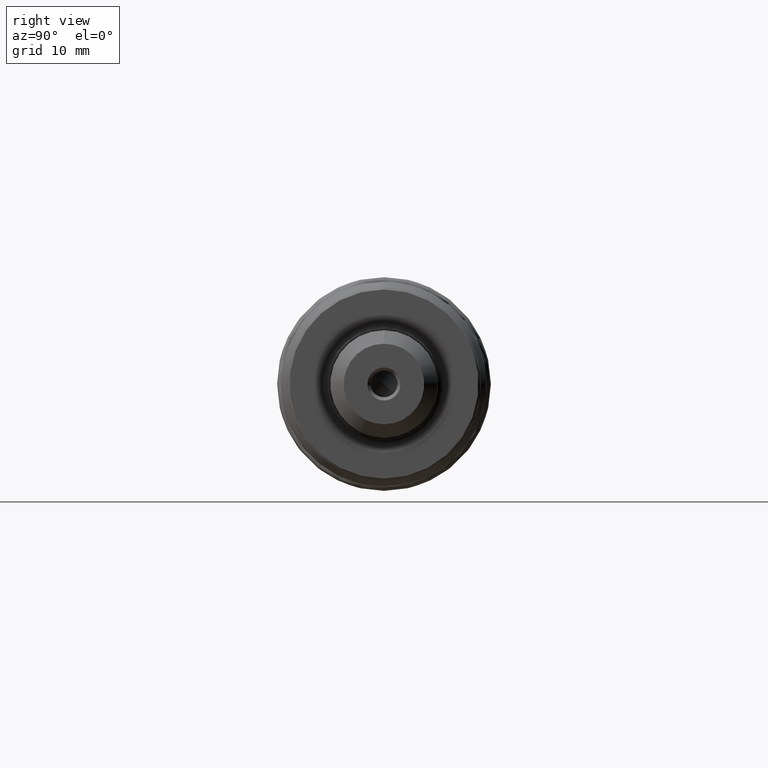
[diagram: clean part render]
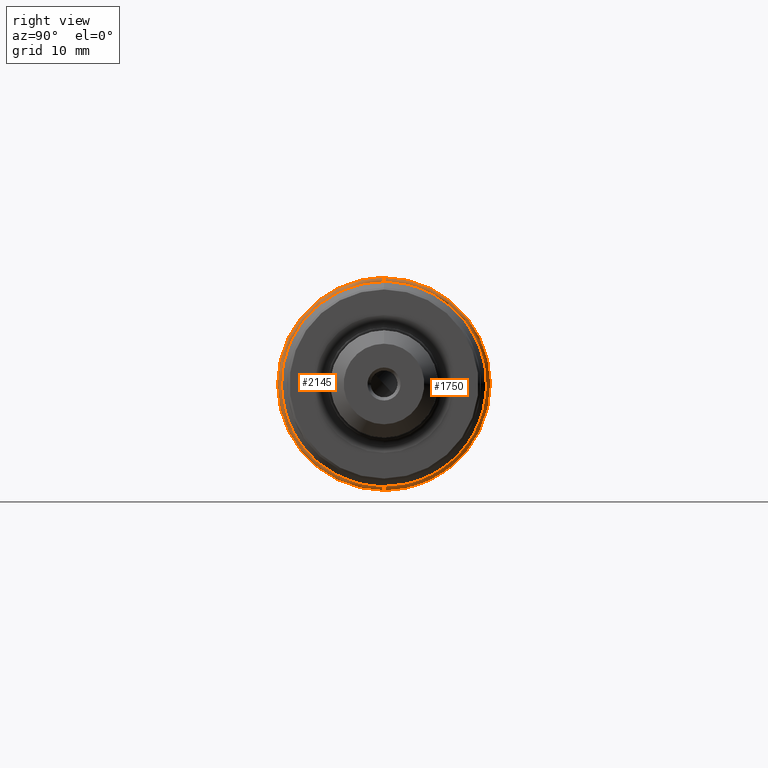
[diagram: same view with one multi-face feature highlighted, each face labeled with its STEP entity id]
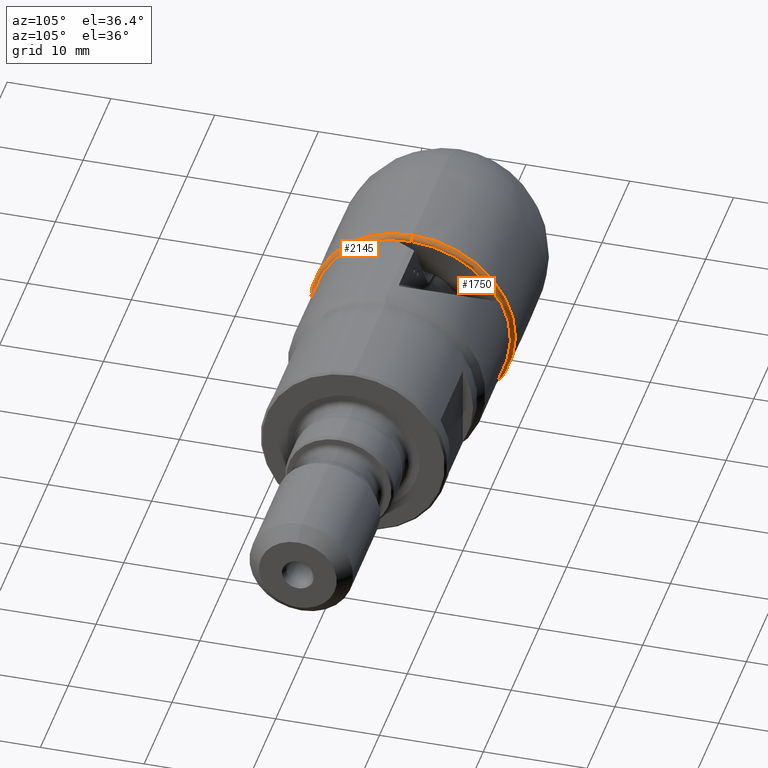
[diagram: same view with one multi-face feature highlighted, each face labeled with its STEP entity id]
A machine part, right view. The highlighted faces form ONE feature: a constant-radius fillet chain: 2 tangent blend faces with common blend radius 0.4183 mm. The faces share edges in the B-rep.
A second angle (auxiliary view) of the same feature is appended — it is thin or edge-on in the first view.
Their STEP definitions:
[1] entity #1750 (Torus):
#18 = CARTESIAN_POINT ( 'NONE',  ( 20.73167743308007616, 0.0000000000000000000, 0.0000000000000000000 ) ) ;
#36 = ORIENTED_EDGE ( 'NONE', *, *, #3346, .T. ) ;
#88 = B_SPLINE_CURVE_WITH_KNOTS ( 'NONE', 3,
 ( #1525, #502, #2565, #1925 ),
 .UNSPECIFIED., .F., .F.,
 ( 4, 4 ),
 ( 0.0005746242800080567049, 0.0007165963232247220607 ),
 .UNSPECIFIED. ) ;
#113 = CARTESIAN_POINT ( 'NONE',  ( 21.12701920496227714, 3.402478379999999802, -8.861709700103181930 ) ) ;
#212 = DIRECTION ( 'NONE',  ( 0.0000000000000000000, 0.0000000000000000000, 1.000000000000000000 ) ) ;
#342 = DIRECTION ( 'NONE',  ( 0.0000000000000000000, 0.0000000000000000000, 1.000000000000000000 ) ) ;
#395 = ORIENTED_EDGE ( 'NONE', *, *, #1327, .T. ) ;
#403 = DIRECTION ( 'NONE',  ( -1.000000000000000000, -0.0000000000000000000, -0.0000000000000000000 ) ) ;
#406 = CARTESIAN_POINT ( 'NONE',  ( 21.12163689232756170, 0.0000000000000000000, 0.0000000000000000000 ) ) ;
#427 = AXIS2_PLACEMENT_3D ( 'NONE', #406, #4414, #2938 ) ;
#430 = AXIS2_PLACEMENT_3D ( 'NONE', #18, #3387, #212 ) ;
#502 = CARTESIAN_POINT ( 'NONE',  ( 21.12669742695476671, 8.596027532152817230, 4.032982321401216375 ) ) ;
#505 = CIRCLE ( 'NONE', #4391, 0.4183131108172009061 ) ;
#653 = DIRECTION ( 'NONE',  ( -1.000000000000000000, -0.0000000000000000000, -0.0000000000000000000 ) ) ;
#727 = CARTESIAN_POINT ( 'NONE',  ( 21.11725314103922457, 0.0000000000000000000, 9.406049446992103213 ) ) ;
#815 = DIRECTION ( 'NONE',  ( 0.0000000000000000000, 0.0000000000000000000, 1.000000000000000000 ) ) ;
#883 = AXIS2_PLACEMENT_3D ( 'NONE', #4208, #3531, #2773 ) ;
#887 = AXIS2_PLACEMENT_3D ( 'NONE', #2936, #403, #815 ) ;
#1032 = CIRCLE ( 'NONE', #887, 9.406049446992103213 ) ;
#1049 = CARTESIAN_POINT ( 'NONE',  ( 20.70646059655977567, 0.0000000000000000000, 0.0000000000000000000 ) ) ;
#1145 = CARTESIAN_POINT ( 'NONE',  ( 21.12163689232757946, 3.402478379999999802, -8.908491367025940022 ) ) ;
#1176 = DIRECTION ( 'NONE',  ( -0.0000000000000000000, 1.000000000000000000, 1.224646799147353207E-16 ) ) ;
#1207 = CARTESIAN_POINT ( 'NONE',  ( 20.73167743308007616, 0.0000000000000000000, 9.902565997730681246 ) ) ;
#1208 = CARTESIAN_POINT ( 'NONE',  ( 20.73167743308007616, 1.212714575246629377E-15, -9.902565997730681246 ) ) ;
#1279 = ORIENTED_EDGE ( 'NONE', *, *, #2064, .F. ) ;
#1327 = EDGE_CURVE ( 'NONE', #1799, #2211, #1466, .T. ) ;
#1426 = EDGE_LOOP ( 'NONE', ( #395, #36, #1777, #4594, #2864, #1279, #4384, #2734 ) ) ;
#1466 = CIRCLE ( 'NONE', #1917, 9.406049446992103213 ) ;
#1525 = CARTESIAN_POINT ( 'NONE',  ( 21.12163689232756170, 8.643153303206718263, 4.029141166553039888 ) ) ;
#1543 = CARTESIAN_POINT ( 'NONE',  ( 21.11725314103922457, 3.402478379999999802, -8.769088155155758457 ) ) ;
#1582 = VERTEX_POINT ( 'NONE', #1208 ) ;
#1750 = ADVANCED_FACE ( 'NONE', ( #2777 ), #3121, .T. ) ;
#1777 = ORIENTED_EDGE ( 'NONE', *, *, #4433, .F. ) ;
#1799 = VERTEX_POINT ( 'NONE', #3590 ) ;
#1917 = AXIS2_PLACEMENT_3D ( 'NONE', #2782, #653, #4166 ) ;
#1925 = CARTESIAN_POINT ( 'NONE',  ( 21.11725314103922457, 8.500975832541801225, 4.025813718219046322 ) ) ;
#2064 = EDGE_CURVE ( 'NONE', #3695, #3224, #88, .T. ) ;
#2075 = CIRCLE ( 'NONE', #883, 0.4183131108172009061 ) ;
#2097 = EDGE_CURVE ( 'NONE', #2115, #3695, #4482, .T. ) ;
#2115 = VERTEX_POINT ( 'NONE', #2914 ) ;
#2134 = B_SPLINE_CURVE_WITH_KNOTS ( 'NONE', 3,
 ( #1543, #2563, #113, #1145 ),
 .UNSPECIFIED., .F., .F.,
 ( 4, 4 ),
 ( 0.0005686338921248355145, 0.0007080817431528470393 ),
 .UNSPECIFIED. ) ;
#2173 = CARTESIAN_POINT ( 'NONE',  ( 21.12163689232756170, 8.643153303206718263, 4.029141166553039888 ) ) ;
#2211 = VERTEX_POINT ( 'NONE', #2334 ) ;
#2239 = AXIS2_PLACEMENT_3D ( 'NONE', #1049, #2553, #342 ) ;
#2334 = CARTESIAN_POINT ( 'NONE',  ( 21.11725314103922457, 1.182311705017345243E-15, -9.406049446992103213 ) ) ;
#2367 = EDGE_CURVE ( 'NONE', #4369, #3224, #1032, .T. ) ;
#2400 = EDGE_CURVE ( 'NONE', #1799, #2115, #2134, .T. ) ;
#2553 = DIRECTION ( 'NONE',  ( -1.000000000000000000, -0.0000000000000000000, -0.0000000000000000000 ) ) ;
#2563 = CARTESIAN_POINT ( 'NONE',  ( 21.12552449895917661, 3.402478379999999802, -8.815243497495545810 ) ) ;
#2565 = CARTESIAN_POINT ( 'NONE',  ( 21.12587616580928440, 8.547511479003194523, 4.032358950262992181 ) ) ;
#2598 = DIRECTION ( 'NONE',  ( 0.0000000000000000000, -1.224646799147357151E-16, 1.000000000000000000 ) ) ;
#2734 = ORIENTED_EDGE ( 'NONE', *, *, #2400, .F. ) ;
#2773 = DIRECTION ( 'NONE',  ( 0.0000000000000000000, 0.0000000000000000000, -1.000000000000000000 ) ) ;
#2777 = FACE_OUTER_BOUND ( 'NONE', #1426, .T. ) ;
#2782 = CARTESIAN_POINT ( 'NONE',  ( 21.11725314103922457, 0.0000000000000000000, 0.0000000000000000000 ) ) ;
#2864 = ORIENTED_EDGE ( 'NONE', *, *, #2367, .T. ) ;
#2914 = CARTESIAN_POINT ( 'NONE',  ( 21.12163689232757946, 3.402478379999999802, -8.908491367025940022 ) ) ;
#2936 = CARTESIAN_POINT ( 'NONE',  ( 21.11725314103922457, 0.0000000000000000000, 0.0000000000000000000 ) ) ;
#2938 = DIRECTION ( 'NONE',  ( 0.0000000000000000000, 1.776356839400250465E-15, 1.000000000000000000 ) ) ;
#3121 = TOROIDAL_SURFACE ( 'NONE', #2239, 9.485013641926679284, 0.4183131108172016277 ) ;
#3224 = VERTEX_POINT ( 'NONE', #4581 ) ;
#3312 = VERTEX_POINT ( 'NONE', #1207 ) ;
#3346 = EDGE_CURVE ( 'NONE', #2211, #1582, #505, .T. ) ;
#3387 = DIRECTION ( 'NONE',  ( -1.000000000000000000, -0.0000000000000000000, -0.0000000000000000000 ) ) ;
#3531 = DIRECTION ( 'NONE',  ( 0.0000000000000000000, -1.000000000000000000, 0.0000000000000000000 ) ) ;
#3590 = CARTESIAN_POINT ( 'NONE',  ( 21.11725314103922457, 3.402478379999999802, -8.769088155155758457 ) ) ;
#3695 = VERTEX_POINT ( 'NONE', #2173 ) ;
#3728 = CIRCLE ( 'NONE', #430, 9.902565997730681246 ) ;
#4010 = EDGE_CURVE ( 'NONE', #4369, #3312, #2075, .T. ) ;
#4166 = DIRECTION ( 'NONE',  ( 0.0000000000000000000, 0.0000000000000000000, 1.000000000000000000 ) ) ;
#4208 = CARTESIAN_POINT ( 'NONE',  ( 20.70646059655977567, 0.0000000000000000000, 9.485013641926679284 ) ) ;
#4369 = VERTEX_POINT ( 'NONE', #727 ) ;
#4380 = CARTESIAN_POINT ( 'NONE',  ( 20.70646059655977567, 1.161579159645448623E-15, -9.485013641926679284 ) ) ;
#4384 = ORIENTED_EDGE ( 'NONE', *, *, #2097, .F. ) ;
#4391 = AXIS2_PLACEMENT_3D ( 'NONE', #4380, #1176, #2598 ) ;
#4414 = DIRECTION ( 'NONE',  ( 1.000000000000000000, 0.0000000000000000000, 0.0000000000000000000 ) ) ;
#4433 = EDGE_CURVE ( 'NONE', #3312, #1582, #3728, .T. ) ;
#4482 = CIRCLE ( 'NONE', #427, 9.536145844246803449 ) ;
#4581 = CARTESIAN_POINT ( 'NONE',  ( 21.11725314103922457, 8.500975832541801225, 4.025813718219046322 ) ) ;
#4594 = ORIENTED_EDGE ( 'NONE', *, *, #4010, .F. ) ;
[2] entity #2145 (Torus):
#128 = CARTESIAN_POINT ( 'NONE',  ( 21.11725314103922457, -9.077534785776810722, -2.464168909038584765 ) ) ;
#469 = CARTESIAN_POINT ( 'NONE',  ( 21.12163689232756170, -9.211279939187230426, -2.467873466098385649 ) ) ;
#505 = CIRCLE ( 'NONE', #4391, 0.4183131108172009061 ) ;
#554 = CARTESIAN_POINT ( 'NONE',  ( 21.12163689232756170, -1.742272438048599215, 9.375636741809154628 ) ) ;
#579 = AXIS2_PLACEMENT_3D ( 'NONE', #1975, #2321, #3388 ) ;
#584 = AXIS2_PLACEMENT_3D ( 'NONE', #2417, #2493, #3500 ) ;
#622 = EDGE_CURVE ( 'NONE', #1862, #4369, #1250, .T. ) ;
#727 = CARTESIAN_POINT ( 'NONE',  ( 21.11725314103922457, 0.0000000000000000000, 9.406049446992103213 ) ) ;
#770 = CARTESIAN_POINT ( 'NONE',  ( 21.11725314103922457, -9.077534785776810722, -2.464168909038584765 ) ) ;
#784 = DIRECTION ( 'NONE',  ( 0.0000000000000000000, 0.0000000000000000000, 1.000000000000000000 ) ) ;
#830 = AXIS2_PLACEMENT_3D ( 'NONE', #1235, #3008, #4179 ) ;
#883 = AXIS2_PLACEMENT_3D ( 'NONE', #4208, #3531, #2773 ) ;
#893 = CARTESIAN_POINT ( 'NONE',  ( 21.12163689232756170, 0.0000000000000000000, 0.0000000000000000000 ) ) ;
#1013 = CARTESIAN_POINT ( 'NONE',  ( 21.12640078097478735, -1.696421967509481155, 9.344813735478942007 ) ) ;
#1015 = ORIENTED_EDGE ( 'NONE', *, *, #1053, .F. ) ;
#1038 = TOROIDAL_SURFACE ( 'NONE', #830, 9.485013641926679284, 0.4183131108172016277 ) ;
#1041 = CARTESIAN_POINT ( 'NONE',  ( 21.12163689232756170, -1.742272438048599215, 9.375636741809154628 ) ) ;
#1053 = EDGE_CURVE ( 'NONE', #1582, #3312, #1346, .T. ) ;
#1057 = EDGE_CURVE ( 'NONE', #2945, #1862, #3430, .T. ) ;
#1176 = DIRECTION ( 'NONE',  ( -0.0000000000000000000, 1.000000000000000000, 1.224646799147353207E-16 ) ) ;
#1207 = CARTESIAN_POINT ( 'NONE',  ( 20.73167743308007616, 0.0000000000000000000, 9.902565997730681246 ) ) ;
#1208 = CARTESIAN_POINT ( 'NONE',  ( 20.73167743308007616, 1.212714575246629377E-15, -9.902565997730681246 ) ) ;
#1235 = CARTESIAN_POINT ( 'NONE',  ( 20.70646059655977567, 0.0000000000000000000, 0.0000000000000000000 ) ) ;
#1250 = CIRCLE ( 'NONE', #3480, 9.406049446992103213 ) ;
#1346 = CIRCLE ( 'NONE', #584, 9.902565997730681246 ) ;
#1542 = B_SPLINE_CURVE_WITH_KNOTS ( 'NONE', 3,
 ( #469, #3686, #1558, #128 ),
 .UNSPECIFIED., .F., .F.,
 ( 4, 4 ),
 ( 0.0002141864477589099178, 0.0003484044306767580031 ),
 .UNSPECIFIED. ) ;
#1558 = CARTESIAN_POINT ( 'NONE',  ( 21.12563706479877013, -9.120805330109014619, -2.471253873925824518 ) ) ;
#1582 = VERTEX_POINT ( 'NONE', #1208 ) ;
#1584 = DIRECTION ( 'NONE',  ( 1.000000000000000000, 0.0000000000000000000, 0.0000000000000000000 ) ) ;
#1862 = VERTEX_POINT ( 'NONE', #3471 ) ;
#1975 = CARTESIAN_POINT ( 'NONE',  ( 21.11725314103922457, 0.0000000000000000000, 0.0000000000000000000 ) ) ;
#1979 = ORIENTED_EDGE ( 'NONE', *, *, #1057, .T. ) ;
#2075 = CIRCLE ( 'NONE', #883, 0.4183131108172009061 ) ;
#2133 = EDGE_LOOP ( 'NONE', ( #3228, #3777, #3916, #3536, #1979, #3753, #2164, #1015 ) ) ;
#2145 = ADVANCED_FACE ( 'NONE', ( #4485 ), #1038, .T. ) ;
#2164 = ORIENTED_EDGE ( 'NONE', *, *, #4010, .T. ) ;
#2211 = VERTEX_POINT ( 'NONE', #2334 ) ;
#2321 = DIRECTION ( 'NONE',  ( -1.000000000000000000, -0.0000000000000000000, -0.0000000000000000000 ) ) ;
#2334 = CARTESIAN_POINT ( 'NONE',  ( 21.11725314103922457, 1.182311705017345243E-15, -9.406049446992103213 ) ) ;
#2417 = CARTESIAN_POINT ( 'NONE',  ( 20.73167743308007616, 0.0000000000000000000, 0.0000000000000000000 ) ) ;
#2493 = DIRECTION ( 'NONE',  ( -1.000000000000000000, -0.0000000000000000000, -0.0000000000000000000 ) ) ;
#2495 = VERTEX_POINT ( 'NONE', #770 ) ;
#2517 = CARTESIAN_POINT ( 'NONE',  ( 21.11725314103922457, -1.616920983062349437, 9.266031120916501607 ) ) ;
#2598 = DIRECTION ( 'NONE',  ( 0.0000000000000000000, -1.224646799147357151E-16, 1.000000000000000000 ) ) ;
#2604 = CIRCLE ( 'NONE', #579, 9.406049446992103213 ) ;
#2773 = DIRECTION ( 'NONE',  ( 0.0000000000000000000, 0.0000000000000000000, -1.000000000000000000 ) ) ;
#2830 = VERTEX_POINT ( 'NONE', #4342 ) ;
#2904 = DIRECTION ( 'NONE',  ( -1.000000000000000000, -0.0000000000000000000, -0.0000000000000000000 ) ) ;
#2945 = VERTEX_POINT ( 'NONE', #554 ) ;
#3008 = DIRECTION ( 'NONE',  ( -1.000000000000000000, -0.0000000000000000000, -0.0000000000000000000 ) ) ;
#3029 = DIRECTION ( 'NONE',  ( 0.0000000000000000000, 0.0000000000000000000, 1.000000000000000000 ) ) ;
#3228 = ORIENTED_EDGE ( 'NONE', *, *, #3346, .F. ) ;
#3285 = EDGE_CURVE ( 'NONE', #2830, #2495, #1542, .T. ) ;
#3312 = VERTEX_POINT ( 'NONE', #1207 ) ;
#3346 = EDGE_CURVE ( 'NONE', #2211, #1582, #505, .T. ) ;
#3388 = DIRECTION ( 'NONE',  ( 0.0000000000000000000, 0.0000000000000000000, 1.000000000000000000 ) ) ;
#3430 = B_SPLINE_CURVE_WITH_KNOTS ( 'NONE', 3,
 ( #1041, #1013, #4574, #2517 ),
 .UNSPECIFIED., .F., .F.,
 ( 4, 4 ),
 ( 0.0001551986609710348226, 0.0003211719068063608276 ),
 .UNSPECIFIED. ) ;
#3471 = CARTESIAN_POINT ( 'NONE',  ( 21.11725314103922457, -1.616920983062349437, 9.266031120916501607 ) ) ;
#3480 = AXIS2_PLACEMENT_3D ( 'NONE', #3566, #2904, #784 ) ;
#3500 = DIRECTION ( 'NONE',  ( 0.0000000000000000000, 0.0000000000000000000, 1.000000000000000000 ) ) ;
#3531 = DIRECTION ( 'NONE',  ( 0.0000000000000000000, -1.000000000000000000, 0.0000000000000000000 ) ) ;
#3536 = ORIENTED_EDGE ( 'NONE', *, *, #4535, .F. ) ;
#3566 = CARTESIAN_POINT ( 'NONE',  ( 21.11725314103922457, 0.0000000000000000000, 0.0000000000000000000 ) ) ;
#3581 = CIRCLE ( 'NONE', #4024, 9.536145844246803449 ) ;
#3686 = CARTESIAN_POINT ( 'NONE',  ( 21.12676719758944799, -9.166992891152098366, -2.472208910179676700 ) ) ;
#3753 = ORIENTED_EDGE ( 'NONE', *, *, #622, .T. ) ;
#3777 = ORIENTED_EDGE ( 'NONE', *, *, #3851, .T. ) ;
#3851 = EDGE_CURVE ( 'NONE', #2211, #2495, #2604, .T. ) ;
#3916 = ORIENTED_EDGE ( 'NONE', *, *, #3285, .F. ) ;
#4010 = EDGE_CURVE ( 'NONE', #4369, #3312, #2075, .T. ) ;
#4024 = AXIS2_PLACEMENT_3D ( 'NONE', #893, #1584, #3029 ) ;
#4179 = DIRECTION ( 'NONE',  ( 0.0000000000000000000, 0.0000000000000000000, 1.000000000000000000 ) ) ;
#4208 = CARTESIAN_POINT ( 'NONE',  ( 20.70646059655977567, 0.0000000000000000000, 9.485013641926679284 ) ) ;
#4342 = CARTESIAN_POINT ( 'NONE',  ( 21.12163689232756170, -9.211279939187230426, -2.467873466098385649 ) ) ;
#4369 = VERTEX_POINT ( 'NONE', #727 ) ;
#4380 = CARTESIAN_POINT ( 'NONE',  ( 20.70646059655977567, 1.161579159645448623E-15, -9.485013641926679284 ) ) ;
#4391 = AXIS2_PLACEMENT_3D ( 'NONE', #4380, #1176, #2598 ) ;
#4485 = FACE_OUTER_BOUND ( 'NONE', #2133, .T. ) ;
#4535 = EDGE_CURVE ( 'NONE', #2945, #2830, #3581, .T. ) ;
#4574 = CARTESIAN_POINT ( 'NONE',  ( 21.12646237534500671, -1.652220454697619800, 9.308504178944803087 ) ) ;